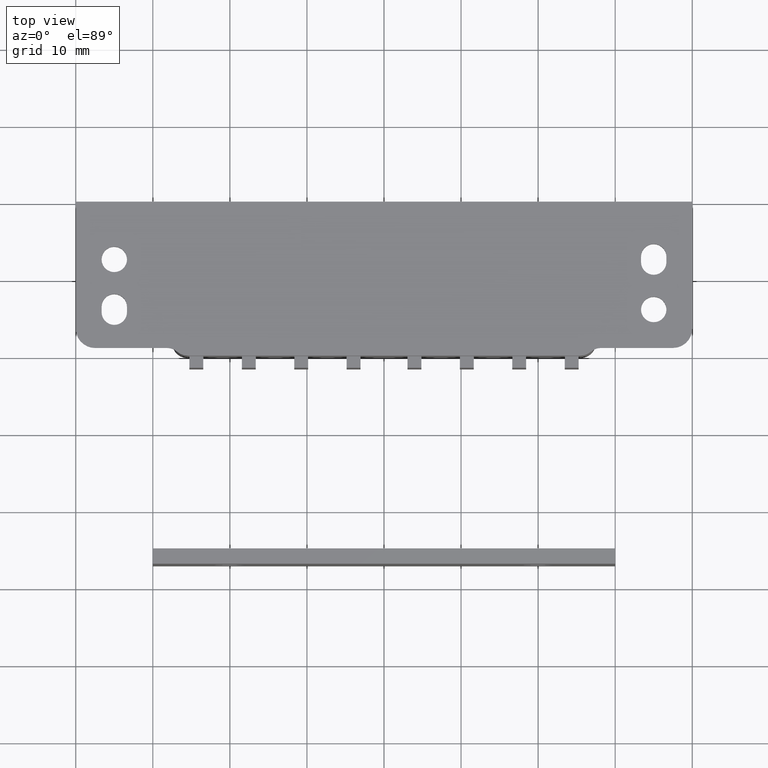
[diagram: clean part render]
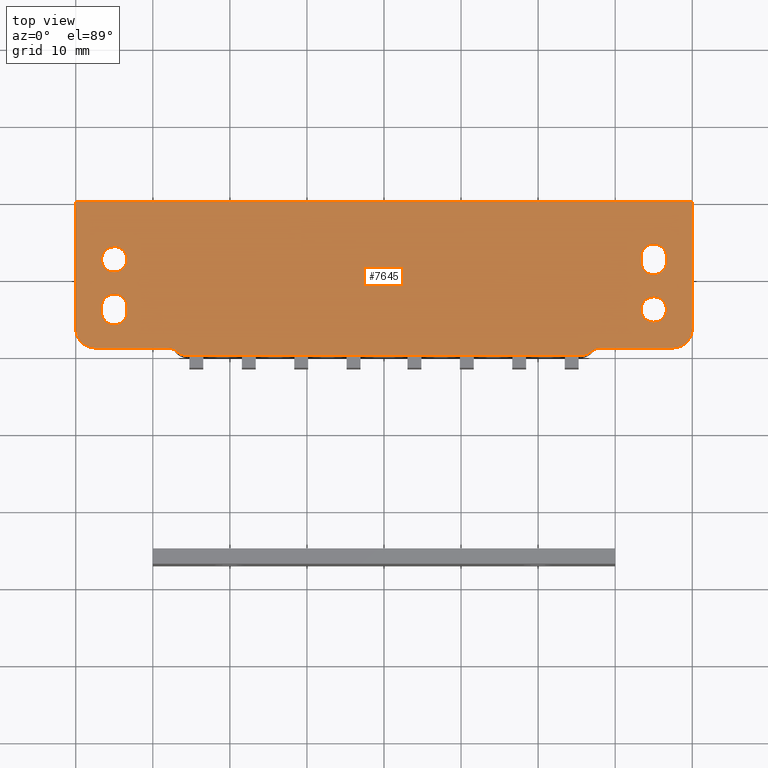
[diagram: same view with one face highlighted and labeled with its STEP entity id]
A machine part, top view. The second image highlights one B-rep face of the part: STEP entity #7645.
In plain terms, the highlighted face is a freeform B-spline surface patch.
Its self-contained STEP definition (entity closure, byte-faithful):
#1995=CARTESIAN_POINT('',(-36.176863099207942,-8.656499951376325,9.999999999830921));
#1996=VERTEX_POINT('',#1995);
#2002=CARTESIAN_POINT('',(-34.999998657114972,-9.149999999921835,9.999999999830921));
#2003=VERTEX_POINT('',#2002);
#2004=CARTESIAN_POINT('',(-36.176863099207942,-8.656499951376325,9.999999999830921));
#2005=CARTESIAN_POINT('',(-36.052559788324402,-8.783150112813512,9.999999999830928));
#2006=CARTESIAN_POINT('',(-35.818316854547803,-8.954711236018451,9.999999999830926));
#2007=CARTESIAN_POINT('',(-35.409442403607073,-9.114354630380699,9.999999999830916));
#2008=CARTESIAN_POINT('',(-35.150142918315858,-9.150046524922862,9.999999999830935));
#2009=CARTESIAN_POINT('',(-34.999998657114972,-9.149999999921835,9.999999999830921));
#2010=B_SPLINE_CURVE_WITH_KNOTS('',3,(#2004,#2005,#2006,#2007,#2008,#2009),.UNSPECIFIED.,.F.,.U.,(4,1,1,4),(0.000000043604833,0.532337739746166,0.859909565033360,1.310340899884334),.UNSPECIFIED.);
#2011=EDGE_CURVE('',#1996,#2003,#2010,.T.);
#2013=CARTESIAN_POINT('',(-33.349999999804950,-7.499999999922379,9.999999999830921));
#2014=VERTEX_POINT('',#2013);
#2015=CARTESIAN_POINT('',(-34.999998657114972,-9.149999999921835,9.999999999830921));
#2016=CARTESIAN_POINT('',(-34.838006827809203,-9.150067975901251,9.999999999830918));
#2017=CARTESIAN_POINT('',(-34.514049093619143,-9.101925546778031,9.999999999830930));
#2018=CARTESIAN_POINT('',(-34.106988056665493,-8.909399673545718,9.999999999830923));
#2019=CARTESIAN_POINT('',(-33.764028063387549,-8.620822454779942,9.999999999830914));
#2020=CARTESIAN_POINT('',(-33.528290545191958,-8.286146174781186,9.999999999830937));
#2021=CARTESIAN_POINT('',(-33.381664756313043,-7.891452604462431,9.999999999830916));
#2022=CARTESIAN_POINT('',(-33.349963664136659,-7.634990368237816,9.999999999830914));
#2023=CARTESIAN_POINT('',(-33.349999999804950,-7.499999999922379,9.999999999830921));
#2024=B_SPLINE_CURVE_WITH_KNOTS('',3,(#2015,#2016,#2017,#2018,#2019,#2020,#2021,#2022,#2023),.UNSPECIFIED.,.F.,.U.,(4,1,1,1,1,1,4),(0.000000143196451,0.485969347096561,0.971972726592703,1.336418079637457,1.822407276901603,2.186905397446274,2.591878221379949),.UNSPECIFIED.);
#2025=EDGE_CURVE('',#2003,#2014,#2024,.T.);
#2027=CARTESIAN_POINT('',(-33.823136900401970,-6.343500048468433,9.999999999830921));
#2028=VERTEX_POINT('',#2027);
#2029=CARTESIAN_POINT('',(-33.349999999804950,-7.499999999922379,9.999999999830921));
#2030=CARTESIAN_POINT('',(-33.349827954581563,-7.299736866380140,9.999999999830941));
#2031=CARTESIAN_POINT('',(-33.428784695021470,-6.872715632039114,9.999999999830896));
#2032=CARTESIAN_POINT('',(-33.663832133787857,-6.505184589184120,9.999999999830939));
#2033=CARTESIAN_POINT('',(-33.823136900401970,-6.343500048468433,9.999999999830921));
#2034=B_SPLINE_CURVE_WITH_KNOTS('',3,(#2029,#2030,#2031,#2032,#2033),.UNSPECIFIED.,.F.,.U.,(4,1,4),(0.000000039019419,0.600731177125174,1.281539180924834),.UNSPECIFIED.);
#2035=EDGE_CURVE('',#2014,#2028,#2034,.T.);
#2074=CARTESIAN_POINT('',(-35.000001342494933,-5.849999999922925,9.999999999830921));
#2075=VERTEX_POINT('',#2074);
#2076=CARTESIAN_POINT('',(-33.823136900401970,-6.343500048468433,9.999999999830921));
#2077=CARTESIAN_POINT('',(-33.947440219661360,-6.216851857524254,9.999999999830923));
#2078=CARTESIAN_POINT('',(-34.181682096385721,-6.045282519078217,9.999999999830916));
#2079=CARTESIAN_POINT('',(-34.590559622598363,-5.885656020689428,9.999999999830941));
#2080=CARTESIAN_POINT('',(-34.849854944656357,-5.849943040640858,9.999999999830887));
#2081=CARTESIAN_POINT('',(-35.000001342494933,-5.849999999922925,9.999999999830921));
#2082=B_SPLINE_CURVE_WITH_KNOTS('',3,(#2076,#2077,#2078,#2079,#2080,#2081),.UNSPECIFIED.,.F.,.U.,(4,1,1,4),(0.000000043606622,0.532337739747048,0.859909565033827,1.310340899884325),.UNSPECIFIED.);
#2083=EDGE_CURVE('',#2028,#2075,#2082,.T.);
#2085=CARTESIAN_POINT('',(-36.649999999804947,-7.499999999922379,9.999999999830921));
#2086=VERTEX_POINT('',#2085);
#2087=CARTESIAN_POINT('',(-35.000001342494933,-5.849999999922925,9.999999999830921));
#2088=CARTESIAN_POINT('',(-35.189001619373322,-5.849887014252571,9.999999999830919));
#2089=CARTESIAN_POINT('',(-35.539885336373288,-5.910959272142915,9.999999999830934));
#2090=CARTESIAN_POINT('',(-35.997236780366933,-6.155387380679422,9.999999999830905));
#2091=CARTESIAN_POINT('',(-36.334932769121792,-6.493140080011412,9.999999999830937));
#2092=CARTESIAN_POINT('',(-36.584554551662741,-6.946637854973534,9.999999999830907));
#2093=CARTESIAN_POINT('',(-36.650171139699061,-7.297495140412822,9.999999999830928));
#2094=CARTESIAN_POINT('',(-36.649999999804947,-7.499999999922379,9.999999999830921));
#2095=B_SPLINE_CURVE_WITH_KNOTS('',3,(#2087,#2088,#2089,#2090,#2091,#2092,#2093,#2094),.UNSPECIFIED.,.F.,.U.,(4,1,1,1,1,4),(0.000000143204139,0.566969918943154,1.052954149314996,1.538922043939130,1.984407963666598,2.591878221379881),.UNSPECIFIED.);
#2096=EDGE_CURVE('',#2075,#2086,#2095,.T.);
#2098=CARTESIAN_POINT('',(-36.649999999804947,-7.499999999922379,9.999999999830921));
#2099=CARTESIAN_POINT('',(-36.650100720806464,-7.673556368000356,9.999999999830941));
#2100=CARTESIAN_POINT('',(-36.605336405290487,-7.953814640821596,9.999999999830914));
#2101=CARTESIAN_POINT('',(-36.433228133789790,-8.346990110478679,9.999999999830925));
#2102=CARTESIAN_POINT('',(-36.279817561326020,-8.551793639319003,9.999999999830925));
#2103=CARTESIAN_POINT('',(-36.176863099207942,-8.656499951376325,9.999999999830921));
#2104=B_SPLINE_CURVE_WITH_KNOTS('',3,(#2098,#2099,#2100,#2101,#2102,#2103),.UNSPECIFIED.,.F.,.U.,(4,1,1,4),(0.000000039019231,0.520636278948182,0.841008550479452,1.281539180924842),.UNSPECIFIED.);
#2105=EDGE_CURVE('',#2086,#1996,#2104,.T.);
#2189=CARTESIAN_POINT('',(33.823136900777577,-15.156499951531620,9.999999999830921));
#2190=VERTEX_POINT('',#2189);
#2196=CARTESIAN_POINT('',(35.000001342870540,-15.650000000077130,9.999999999830921));
#2197=VERTEX_POINT('',#2196);
#2198=CARTESIAN_POINT('',(33.823136900777577,-15.156499951531620,9.999999999830921));
#2199=CARTESIAN_POINT('',(33.947452694158919,-15.283123410151850,9.999999999830916));
#2200=CARTESIAN_POINT('',(34.203972428255732,-15.471107887782070,9.999999999830937));
#2201=CARTESIAN_POINT('',(34.617836507409343,-15.620917070479640,9.999999999830916));
#2202=CARTESIAN_POINT('',(34.877159469762930,-15.650018629716129,9.999999999830937));
#2203=CARTESIAN_POINT('',(35.000001342870540,-15.650000000077130,9.999999999830921));
#2204=B_SPLINE_CURVE_WITH_KNOTS('',3,(#2198,#2199,#2200,#2201,#2202,#2203),.UNSPECIFIED.,.F.,.U.,(4,1,1,4),(0.000000043604201,0.532337739745839,0.941805147262427,1.310340899884335),.UNSPECIFIED.);
#2205=EDGE_CURVE('',#2190,#2197,#2204,.T.);
#2207=CARTESIAN_POINT('',(36.650000000180562,-14.000000000077680,9.999999999830921));
#2208=VERTEX_POINT('',#2207);
#2209=CARTESIAN_POINT('',(35.000001342870540,-15.650000000077130,9.999999999830921));
#2210=CARTESIAN_POINT('',(35.229542078874182,-15.650315151761690,9.999999999830928));
#2211=CARTESIAN_POINT('',(35.620751157747428,-15.566930251436871,9.999999999830916));
#2212=CARTESIAN_POINT('',(36.081905125526433,-15.274888611152511,9.999999999830937));
#2213=CARTESIAN_POINT('',(36.406791283746657,-14.907501070447720,9.999999999830923));
#2214=CARTESIAN_POINT('',(36.606027916788619,-14.472475590641579,9.999999999830909));
#2215=CARTESIAN_POINT('',(36.650034989054397,-14.148488041750671,9.999999999830955));
#2216=CARTESIAN_POINT('',(36.650000000180562,-14.000000000077680,9.999999999830921));
#2217=B_SPLINE_CURVE_WITH_KNOTS('',3,(#2209,#2210,#2211,#2212,#2213,#2214,#2215,#2216),.UNSPECIFIED.,.F.,.U.,(4,1,1,1,1,4),(0.000000143196917,0.688469496129351,1.174474331487579,1.619905225718754,2.146400118895676,2.591878221379945),.UNSPECIFIED.);
#2218=EDGE_CURVE('',#2197,#2208,#2217,.T.);
#2220=CARTESIAN_POINT('',(36.176863099583528,-12.843500048623740,9.999999999830921));
#2221=VERTEX_POINT('',#2220);
#2222=CARTESIAN_POINT('',(36.650000000180562,-14.000000000077680,9.999999999830921));
#2223=CARTESIAN_POINT('',(36.650270085881267,-13.773026707577690,9.999999999830912));
#2224=CARTESIAN_POINT('',(36.560371373034769,-13.346121466745560,9.999999999830907));
#2225=CARTESIAN_POINT('',(36.317345799966560,-12.986219219087840,9.999999999830953));
#2226=CARTESIAN_POINT('',(36.176863099583528,-12.843500048623740,9.999999999830921));
#2227=B_SPLINE_CURVE_WITH_KNOTS('',3,(#2222,#2223,#2224,#2225,#2226),.UNSPECIFIED.,.F.,.U.,(4,1,4),(0.000000039020251,0.680808042821854,1.281539180924835),.UNSPECIFIED.);
#2228=EDGE_CURVE('',#2208,#2221,#2227,.T.);
#2268=CARTESIAN_POINT('',(34.999998657490572,-12.350000000078230,9.999999999830921));
#2269=VERTEX_POINT('',#2268);
#2270=CARTESIAN_POINT('',(36.176863099583528,-12.843500048623740,9.999999999830921));
#2271=CARTESIAN_POINT('',(36.033475826134598,-12.697317342665309,9.999999999830926));
#2272=CARTESIAN_POINT('',(35.668535083438393,-12.443812530069909,9.999999999830914));
#2273=CARTESIAN_POINT('',(35.232087874301122,-12.349669093010650,9.999999999830925));
#2274=CARTESIAN_POINT('',(34.999998657490572,-12.350000000078230,9.999999999830921));
#2275=B_SPLINE_CURVE_WITH_KNOTS('',3,(#2270,#2271,#2272,#2273,#2274),.UNSPECIFIED.,.F.,.U.,(4,1,4),(0.000000043606150,0.614232641435955,1.310340899884326),.UNSPECIFIED.);
#2276=EDGE_CURVE('',#2221,#2269,#2275,.T.);
#2278=CARTESIAN_POINT('',(33.350000000180557,-14.000000000077680,9.999999999830921));
#2279=VERTEX_POINT('',#2278);
#2280=CARTESIAN_POINT('',(34.999998657490572,-12.350000000078230,9.999999999830921));
#2281=CARTESIAN_POINT('',(34.797481235835789,-12.349821942156170,9.999999999830932));
#2282=CARTESIAN_POINT('',(34.473654857573457,-12.410437811254569,9.999999999830925));
#2283=CARTESIAN_POINT('',(34.039631648482342,-12.635604604536450,9.999999999830925));
#2284=CARTESIAN_POINT('',(33.716068482199582,-12.928835353178901,9.999999999830914));
#2285=CARTESIAN_POINT('',(33.430215915028619,-13.392760076525860,9.999999999830930));
#2286=CARTESIAN_POINT('',(33.349685734689437,-13.770455663054079,9.999999999830921));
#2287=CARTESIAN_POINT('',(33.350000000180557,-14.000000000077680,9.999999999830921));
#2288=B_SPLINE_CURVE_WITH_KNOTS('',3,(#2280,#2281,#2282,#2283,#2284,#2285,#2286,#2287),.UNSPECIFIED.,.F.,.U.,(4,1,1,1,1,4),(0.000000143197499,0.607471092770546,0.971972726593701,1.457908386618921,1.903409440746324,2.591878221379911),.UNSPECIFIED.);
#2289=EDGE_CURVE('',#2269,#2279,#2288,.T.);
#2291=CARTESIAN_POINT('',(33.350000000180557,-14.000000000077680,9.999999999830921));
#2292=CARTESIAN_POINT('',(33.349827992734518,-14.200262544430760,9.999999999830909));
#2293=CARTESIAN_POINT('',(33.428784698248499,-14.627285093015169,9.999999999830958));
#2294=CARTESIAN_POINT('',(33.663832125964667,-14.994815106490471,9.999999999830898));
#2295=CARTESIAN_POINT('',(33.823136900777577,-15.156499951531620,9.999999999830921));
#2296=B_SPLINE_CURVE_WITH_KNOTS('',3,(#2291,#2292,#2293,#2294,#2295),.UNSPECIFIED.,.F.,.U.,(4,1,4),(0.000000039020049,0.600731177125451,1.281539180924828),.UNSPECIFIED.);
#2297=EDGE_CURVE('',#2279,#2190,#2296,.T.);
#5148=CARTESIAN_POINT('',(25.500000000000000,-20.0,9.999999999830949));
#5149=VERTEX_POINT('',#5148);
#5155=CARTESIAN_POINT('',(-25.500000000000000,-20.0,9.999999999830949));
#5156=VERTEX_POINT('',#5155);
#5157=CARTESIAN_POINT('',(25.500000000000000,-20.0,9.999999999830949));
#5158=CARTESIAN_POINT('',(-25.500000000000000,-20.0,9.999999999830949));
#5159=QUASI_UNIFORM_CURVE('',1,(#5157,#5158),.UNSPECIFIED.,.F.,.U.);
#5160=EDGE_CURVE('',#5149,#5156,#5159,.T.);
#5394=CARTESIAN_POINT('',(-26.822875655532151,-19.500000000000000,9.999999999830949));
#5395=VERTEX_POINT('',#5394);
#5425=CARTESIAN_POINT('',(-28.145751311064451,-19.0,9.999999999830949));
#5426=VERTEX_POINT('',#5425);
#5427=CARTESIAN_POINT('',(-28.145751311064451,-19.0,9.999999999830949));
#5428=CARTESIAN_POINT('',(-27.919874243531400,-18.999842786054700,9.999999999831017));
#5429=CARTESIAN_POINT('',(-27.438172998481619,-19.082553604432618,9.999999999831067));
#5430=CARTESIAN_POINT('',(-27.014698789111659,-19.330455386900638,9.999999999831029));
#5431=CARTESIAN_POINT('',(-26.822875655532151,-19.500000000000000,9.999999999830949));
#5432=B_SPLINE_CURVE_WITH_KNOTS('',3,(#5427,#5428,#5429,#5430,#5431),.UNSPECIFIED.,.F.,.U.,(4,1,4),(0.000000033092289,0.677587241122112,1.445499211826819),.UNSPECIFIED.);
#5433=EDGE_CURVE('',#5426,#5395,#5432,.T.);
#5659=CARTESIAN_POINT('',(26.822875655532449,-19.500000000000000,9.999999999830949));
#5660=VERTEX_POINT('',#5659);
#5661=CARTESIAN_POINT('',(28.145751311064750,-19.0,9.999999999830949));
#5662=VERTEX_POINT('',#5661);
#5663=CARTESIAN_POINT('',(26.822875655532449,-19.500000000000000,9.999999999830949));
#5664=CARTESIAN_POINT('',(26.969630901307770,-19.370453206022479,9.999999999830942));
#5665=CARTESIAN_POINT('',(27.263294357220278,-19.179940112322608,9.999999999830971));
#5666=CARTESIAN_POINT('',(27.724160135493008,-19.029170376796490,9.999999999830918));
#5667=CARTESIAN_POINT('',(28.010237703033891,-18.999985242852429,9.999999999830980));
#5668=CARTESIAN_POINT('',(28.145751311064750,-19.0,9.999999999830949));
#5669=B_SPLINE_CURVE_WITH_KNOTS('',3,(#5663,#5664,#5665,#5666,#5667,#5668),.UNSPECIFIED.,.F.,.U.,(4,1,1,4),(0.000000033092682,0.587244772072004,1.038950390007294,1.445499211826872),.UNSPECIFIED.);
#5670=EDGE_CURVE('',#5660,#5662,#5669,.T.);
#5948=CARTESIAN_POINT('',(-33.349999999820263,-14.349999999925920,9.999999999830949));
#5949=VERTEX_POINT('',#5948);
#5950=CARTESIAN_POINT('',(-33.349999999818714,-13.649999999925940,9.999999999830921));
#5951=VERTEX_POINT('',#5950);
#5952=CARTESIAN_POINT('',(-33.349999999820263,-14.349999999925920,9.999999999830949));
#5953=CARTESIAN_POINT('',(-33.349999999818714,-13.649999999925940,9.999999999830921));
#5954=QUASI_UNIFORM_CURVE('',1,(#5952,#5953),.UNSPECIFIED.,.F.,.U.);
#5955=EDGE_CURVE('',#5949,#5951,#5954,.T.);
#5989=CARTESIAN_POINT('',(-36.649999999820253,-14.349999999918600,9.999999999830921));
#5990=VERTEX_POINT('',#5989);
#5991=CARTESIAN_POINT('',(-34.999998657133517,-15.999999999921760,9.999999999830921));
#5992=VERTEX_POINT('',#5991);
#5993=CARTESIAN_POINT('',(-36.649999999820253,-14.349999999918600,9.999999999830921));
#5994=CARTESIAN_POINT('',(-36.650028250921402,-14.484989427412421,9.999999999830925));
#5995=CARTESIAN_POINT('',(-36.615034993624597,-14.768463355077230,9.999999999830921));
#5996=CARTESIAN_POINT('',(-36.448177324925510,-15.185887729060340,9.999999999830886));
#5997=CARTESIAN_POINT('',(-36.179489864329163,-15.530116338169311,9.999999999830997));
#5998=CARTESIAN_POINT('',(-35.898432266334702,-15.743888377256910,9.999999999830790));
#5999=CARTESIAN_POINT('',(-35.526289207819282,-15.937062656461061,9.999999999830958));
#6000=CARTESIAN_POINT('',(-35.229547928839388,-16.000299006734540,9.999999999831053));
#6001=CARTESIAN_POINT('',(-34.999998657133517,-15.999999999921760,9.999999999830921));
#6002=B_SPLINE_CURVE_WITH_KNOTS('',3,(#5993,#5994,#5995,#5996,#5997,#5998,#5999,#6000,#6001),.UNSPECIFIED.,.F.,.U.,(4,1,1,1,1,1,4),(0.000000141363688,0.404977360991245,0.850462318756359,1.336418857481805,1.700913000900530,1.903410552762503,2.591879734942486),.UNSPECIFIED.);
#6003=EDGE_CURVE('',#5990,#5992,#6002,.T.);
#6005=CARTESIAN_POINT('',(-34.999998657133517,-15.999999999921760,9.999999999830921));
#6006=CARTESIAN_POINT('',(-34.797490294161200,-16.000178847883650,9.999999999830935));
#6007=CARTESIAN_POINT('',(-34.446640575634191,-15.934549382105910,9.999999999830916));
#6008=CARTESIAN_POINT('',(-33.993135819078269,-15.684935640096100,9.999999999830935));
#6009=CARTESIAN_POINT('',(-33.665057187771737,-15.356871259969830,9.999999999830944));
#6010=CARTESIAN_POINT('',(-33.415448892837901,-14.903358789023210,9.999999999830934));
#6011=CARTESIAN_POINT('',(-33.349827949544697,-14.552505944276289,9.999999999830969));
#6012=CARTESIAN_POINT('',(-33.349999999820263,-14.349999999925920,9.999999999830949));
#6013=B_SPLINE_CURVE_WITH_KNOTS('',3,(#6005,#6006,#6007,#6008,#6009,#6010,#6011,#6012),.UNSPECIFIED.,.F.,.U.,(4,1,1,1,1,4),(0.000000143204163,0.607471092775437,1.052954149315453,1.538922043939711,1.984407963666999,2.591878221379680),.UNSPECIFIED.);
#6014=EDGE_CURVE('',#5992,#5949,#6013,.T.);
#6032=CARTESIAN_POINT('',(-36.649999999818696,-13.649999999918659,9.999999999830921));
#6033=VERTEX_POINT('',#6032);
#6034=CARTESIAN_POINT('',(-36.649999999818696,-13.649999999918659,9.999999999830921));
#6035=CARTESIAN_POINT('',(-36.649999999820253,-14.349999999918600,9.999999999830921));
#6036=QUASI_UNIFORM_CURVE('',1,(#6034,#6035),.UNSPECIFIED.,.F.,.U.);
#6037=EDGE_CURVE('',#6033,#5990,#6036,.T.);
#6067=CARTESIAN_POINT('',(-34.999999999816893,-11.999999999922300,9.999999999830921));
#6068=VERTEX_POINT('',#6067);
#6069=CARTESIAN_POINT('',(-33.349999999818714,-13.649999999925940,9.999999999830921));
#6070=CARTESIAN_POINT('',(-33.349823979707331,-13.447482721639860,9.999999999830921));
#6071=CARTESIAN_POINT('',(-33.410431626205359,-13.123655101048231,9.999999999830951));
#6072=CARTESIAN_POINT('',(-33.635613380475171,-12.689631927850440,9.999999999830889));
#6073=CARTESIAN_POINT('',(-33.892178145759537,-12.406523919695500,9.999999999830960));
#6074=CARTESIAN_POINT('',(-34.193879976782704,-12.199620087041660,9.999999999830886));
#6075=CARTESIAN_POINT('',(-34.541088672062301,-12.045666611431709,9.999999999830985));
#6076=CARTESIAN_POINT('',(-34.824501801872898,-11.999904844235781,9.999999999830857));
#6077=CARTESIAN_POINT('',(-34.999999999816893,-11.999999999922300,9.999999999830921));
#6078=B_SPLINE_CURVE_WITH_KNOTS('',3,(#6069,#6070,#6071,#6072,#6073,#6074,#6075,#6076,#6077),.UNSPECIFIED.,.F.,.U.,(4,1,1,1,1,1,4),(0.000000142276358,0.607471269429188,0.971973009488729,1.457908813164520,1.741417795148994,2.065410730747077,2.591878978162352),.UNSPECIFIED.);
#6079=EDGE_CURVE('',#5951,#6068,#6078,.T.);
#6081=CARTESIAN_POINT('',(-34.999999999816893,-11.999999999922300,9.999999999830921));
#6082=CARTESIAN_POINT('',(-35.161992452424833,-11.999925625427700,9.999999999830930));
#6083=CARTESIAN_POINT('',(-35.445435128033971,-12.042093896346101,9.999999999830907));
#6084=CARTESIAN_POINT('',(-35.782467595200423,-12.186588218170250,9.999999999830941));
#6085=CARTESIAN_POINT('',(-36.052579107577621,-12.367067799990121,9.999999999830919));
#6086=CARTESIAN_POINT('',(-36.285885386608420,-12.594690763671551,9.999999999830910));
#6087=CARTESIAN_POINT('',(-36.478440732346961,-12.890692634830961,9.999999999830964));
#6088=CARTESIAN_POINT('',(-36.615130106239093,-13.245050762766640,9.999999999830827));
#6089=CARTESIAN_POINT('',(-36.650053965100319,-13.501504116718570,9.999999999831051));
#6090=CARTESIAN_POINT('',(-36.649999999818696,-13.649999999918659,9.999999999830921));
#6091=B_SPLINE_CURVE_WITH_KNOTS('',3,(#6081,#6082,#6083,#6084,#6085,#6086,#6087,#6088,#6089,#6090),.UNSPECIFIED.,.F.,.U.,(4,1,1,1,1,1,1,4),(0.000000142279290,0.485969488169024,0.850462070785217,1.093461441604808,1.457908813164779,1.822407809335035,2.146400744933881,2.591878978160312),.UNSPECIFIED.);
#6092=EDGE_CURVE('',#6068,#6033,#6091,.T.);
#6106=CARTESIAN_POINT('',(33.350000000195749,-7.150000000073930,9.999999999830949));
#6107=VERTEX_POINT('',#6106);
#6108=CARTESIAN_POINT('',(33.350000000194150,-7.850000000073890,9.999999999830921));
#6109=VERTEX_POINT('',#6108);
#6110=CARTESIAN_POINT('',(33.350000000195749,-7.150000000073930,9.999999999830949));
#6111=CARTESIAN_POINT('',(33.350000000194150,-7.850000000073890,9.999999999830921));
#6112=QUASI_UNIFORM_CURVE('',1,(#6110,#6111),.UNSPECIFIED.,.F.,.U.);
#6113=EDGE_CURVE('',#6107,#6109,#6112,.T.);
#6147=CARTESIAN_POINT('',(36.650000000195753,-7.150000000081239,9.999999999830921));
#6148=VERTEX_POINT('',#6147);
#6149=CARTESIAN_POINT('',(35.000000000197517,-5.500000000077600,9.999999999830921));
#6150=VERTEX_POINT('',#6149);
#6151=CARTESIAN_POINT('',(36.650000000195753,-7.150000000081239,9.999999999830921));
#6152=CARTESIAN_POINT('',(36.650279780172163,-6.920460595195561,9.999999999830926));
#6153=CARTESIAN_POINT('',(36.575575875559267,-6.569737966243877,9.999999999830902));
#6154=CARTESIAN_POINT('',(36.349768336651479,-6.182554945853217,9.999999999830932));
#6155=CARTESIAN_POINT('',(36.098513285408863,-5.898311006377206,9.999999999830894));
#6156=CARTESIAN_POINT('',(35.797303369227940,-5.686163938015399,9.999999999830951));
#6157=CARTESIAN_POINT('',(35.404946298613751,-5.534872675638113,9.999999999830887));
#6158=CARTESIAN_POINT('',(35.148493395096366,-5.499950571811533,9.999999999830935));
#6159=CARTESIAN_POINT('',(35.000000000197517,-5.500000000077600,9.999999999830921));
#6160=B_SPLINE_CURVE_WITH_KNOTS('',3,(#6151,#6152,#6153,#6154,#6155,#6156,#6157,#6158,#6159),.UNSPECIFIED.,.F.,.U.,(4,1,1,1,1,1,4),(0.000000142281871,0.688469696413773,1.052954455396957,1.336418468561289,1.822407809336705,2.146400744935654,2.591878978162362),.UNSPECIFIED.);
#6161=EDGE_CURVE('',#6148,#6150,#6160,.T.);
#6163=CARTESIAN_POINT('',(35.000000000197517,-5.500000000077600,9.999999999830921));
#6164=CARTESIAN_POINT('',(34.770455436379962,-5.499706705028362,9.999999999830942));
#6165=CARTESIAN_POINT('',(34.446725006594967,-5.568691171352916,9.999999999830891));
#6166=CARTESIAN_POINT('',(34.055044433022857,-5.784384577293785,9.999999999830941));
#6167=CARTESIAN_POINT('',(33.816029755161424,-5.985475393273947,9.999999999830965));
#6168=CARTESIAN_POINT('',(33.604379765793972,-6.249931433154823,9.999999999830898));
#6169=CARTESIAN_POINT('',(33.410421241533470,-6.623639827817538,9.999999999830987));
#6170=CARTESIAN_POINT('',(33.349818704355492,-6.947486441802309,9.999999999830926));
#6171=CARTESIAN_POINT('',(33.350000000195749,-7.150000000073930,9.999999999830949));
#6172=B_SPLINE_CURVE_WITH_KNOTS('',3,(#6163,#6164,#6165,#6166,#6167,#6168,#6169,#6170,#6171),.UNSPECIFIED.,.F.,.U.,(4,1,1,1,1,1,4),(0.000000142277889,0.688469696410435,0.971973009489058,1.336418468558928,1.619905698937448,1.984408543326756,2.591878978160204),.UNSPECIFIED.);
#6173=EDGE_CURVE('',#6150,#6107,#6172,.T.);
#6191=CARTESIAN_POINT('',(36.650000000194197,-7.850000000081219,9.999999999830921));
#6192=VERTEX_POINT('',#6191);
#6193=CARTESIAN_POINT('',(36.650000000194197,-7.850000000081219,9.999999999830921));
#6194=CARTESIAN_POINT('',(36.650000000195753,-7.150000000081239,9.999999999830921));
#6195=QUASI_UNIFORM_CURVE('',1,(#6193,#6194),.UNSPECIFIED.,.F.,.U.);
#6196=EDGE_CURVE('',#6192,#6148,#6195,.T.);
#6226=CARTESIAN_POINT('',(35.000001342880907,-9.500000000076982,9.999999999830921));
#6227=VERTEX_POINT('',#6226);
#6228=CARTESIAN_POINT('',(33.350000000194150,-7.850000000073890,9.999999999830921));
#6229=CARTESIAN_POINT('',(33.349981368623453,-7.971487834961571,9.999999999830925));
#6230=CARTESIAN_POINT('',(33.378459330915447,-8.227959992989195,9.999999999830921));
#6231=CARTESIAN_POINT('',(33.529535683059031,-8.650607420707591,9.999999999830918));
#6232=CARTESIAN_POINT('',(33.839632818836542,-9.068778057911418,9.999999999830921));
#6233=CARTESIAN_POINT('',(34.352209225152883,-9.411261612988154,9.999999999830926));
#6234=CARTESIAN_POINT('',(34.770486816484649,-9.500279544041778,9.999999999830921));
#6235=CARTESIAN_POINT('',(35.000001342880907,-9.500000000076982,9.999999999830921));
#6236=B_SPLINE_CURVE_WITH_KNOTS('',3,(#6228,#6229,#6230,#6231,#6232,#6233,#6234,#6235),.UNSPECIFIED.,.F.,.U.,(4,1,1,1,1,4),(0.000000141357352,0.364470789720058,0.769471383543764,1.336418857480457,1.903410552762110,2.591879734942471),.UNSPECIFIED.);
#6237=EDGE_CURVE('',#6109,#6227,#6236,.T.);
#6239=CARTESIAN_POINT('',(35.000001342880907,-9.500000000076982,9.999999999830921));
#6240=CARTESIAN_POINT('',(35.202514640447660,-9.500171236346807,9.999999999830907));
#6241=CARTESIAN_POINT('',(35.526359000211912,-9.439583986987007,9.999999999830967));
#6242=CARTESIAN_POINT('',(35.924173491281273,-9.233119781770174,9.999999999830882));
#6243=CARTESIAN_POINT('',(36.235976568530972,-8.970825410490662,9.999999999830941));
#6244=CARTESIAN_POINT('',(36.463839516321627,-8.647303864853024,9.999999999830919));
#6245=CARTESIAN_POINT('',(36.615123870172042,-8.254943507008738,9.999999999830919));
#6246=CARTESIAN_POINT('',(36.650053263738819,-7.998495896725114,9.999999999830937));
#6247=CARTESIAN_POINT('',(36.650000000194197,-7.850000000081219,9.999999999830921));
#6248=B_SPLINE_CURVE_WITH_KNOTS('',3,(#6239,#6240,#6241,#6242,#6243,#6244,#6245,#6246,#6247),.UNSPECIFIED.,.F.,.U.,(4,1,1,1,1,1,4),(0.000000143198491,0.607471092771285,0.971972726594204,1.336418079638489,1.822407276902048,2.146400118895840,2.591878221379697),.UNSPECIFIED.);
#6249=EDGE_CURVE('',#6227,#6192,#6248,.T.);
#6360=CARTESIAN_POINT('',(25.500000000000000,-20.0,9.999999999830949));
#6361=CARTESIAN_POINT('',(25.756000941961041,-20.000244945492540,9.999999999830951));
#6362=CARTESIAN_POINT('',(26.237602144799052,-19.906136358245970,9.999999999830942));
#6363=CARTESIAN_POINT('',(26.653568064710470,-19.649514925544061,9.999999999830967));
#6364=CARTESIAN_POINT('',(26.822875655532449,-19.500000000000000,9.999999999830949));
#6365=B_SPLINE_CURVE_WITH_KNOTS('',3,(#6360,#6361,#6362,#6363,#6364),.UNSPECIFIED.,.F.,.U.,(4,1,4),(0.000000033091931,0.767912003796789,1.445499211827006),.UNSPECIFIED.);
#6366=EDGE_CURVE('',#5149,#5660,#6365,.T.);
#6471=CARTESIAN_POINT('',(-26.822875655532151,-19.500000000000000,9.999999999830949));
#6472=CARTESIAN_POINT('',(-26.631036125594420,-19.669511962374159,9.999999999830951));
#6473=CARTESIAN_POINT('',(-26.207589135470990,-19.917479012883518,9.999999999830962));
#6474=CARTESIAN_POINT('',(-25.725876006844171,-20.000150402465881,9.999999999830951));
#6475=CARTESIAN_POINT('',(-25.500000000000000,-20.0,9.999999999830949));
#6476=B_SPLINE_CURVE_WITH_KNOTS('',3,(#6471,#6472,#6473,#6474,#6475),.UNSPECIFIED.,.F.,.U.,(4,1,4),(0.000000033091254,0.767912003796494,1.445499211826743),.UNSPECIFIED.);
#6477=EDGE_CURVE('',#5395,#5156,#6476,.T.);
#7071=CARTESIAN_POINT('',(-40.0,-5.0,9.999999999830949));
#7072=VERTEX_POINT('',#7071);
#7119=CARTESIAN_POINT('',(-40.0,-16.500000000000000,9.999999999830949));
#7120=VERTEX_POINT('',#7119);
#7133=CARTESIAN_POINT('',(-40.0,-16.500000000000000,9.999999999830949));
#7134=CARTESIAN_POINT('',(-40.0,-5.0,9.999999999830949));
#7135=QUASI_UNIFORM_CURVE('',1,(#7133,#7134),.UNSPECIFIED.,.F.,.U.);
#7136=EDGE_CURVE('',#7120,#7072,#7135,.T.);
#7167=CARTESIAN_POINT('',(-37.500000000000000,-19.0,9.999999999830949));
#7168=VERTEX_POINT('',#7167);
#7182=CARTESIAN_POINT('',(-40.0,-16.500000000000000,9.999999999830949));
#7183=CARTESIAN_POINT('',(-40.000077754875079,-16.724990664261050,9.999999999830946));
#7184=CARTESIAN_POINT('',(-39.947169644042077,-17.113555052668890,9.999999999830944));
#7185=CARTESIAN_POINT('',(-39.747457768903587,-17.631280489155110,9.999999999830907));
#7186=CARTESIAN_POINT('',(-39.483574408492430,-18.047997306725570,9.999999999830941));
#7187=CARTESIAN_POINT('',(-39.143458148694997,-18.405229408275201,9.999999999830905));
#7188=CARTESIAN_POINT('',(-38.740194717647228,-18.689235634026961,9.999999999830934));
#7189=CARTESIAN_POINT('',(-38.195320330314473,-18.930804140290160,9.999999999830919));
#7190=CARTESIAN_POINT('',(-37.765911217327108,-19.000145193432161,9.999999999830964));
#7191=CARTESIAN_POINT('',(-37.500000000000000,-19.0,9.999999999830949));
#7192=B_SPLINE_CURVE_WITH_KNOTS('',3,(#7182,#7183,#7184,#7185,#7186,#7187,#7188,#7189,#7190,#7191),.UNSPECIFIED.,.F.,.U.,(4,1,1,1,1,1,1,4),(0.000000048786102,0.674963356796440,1.165858561915037,1.656751593041308,2.147620588130685,2.638510575359961,3.129400375707675,3.927089360836428),.UNSPECIFIED.);
#7193=EDGE_CURVE('',#7120,#7168,#7192,.T.);
#7215=CARTESIAN_POINT('',(-28.145751311064451,-19.0,9.999999999830949));
#7216=CARTESIAN_POINT('',(-37.500000000000000,-19.0,9.999999999830949));
#7217=QUASI_UNIFORM_CURVE('',1,(#7215,#7216),.UNSPECIFIED.,.F.,.U.);
#7218=EDGE_CURVE('',#5426,#7168,#7217,.T.);
#7239=CARTESIAN_POINT('',(40.0,-16.500000000000000,9.999999999834360));
#7240=VERTEX_POINT('',#7239);
#7254=CARTESIAN_POINT('',(40.0,-5.0,9.999999999834360));
#7255=VERTEX_POINT('',#7254);
#7269=CARTESIAN_POINT('',(40.0,-16.500000000000000,9.999999999834360));
#7270=CARTESIAN_POINT('',(40.0,-5.0,9.999999999834360));
#7271=QUASI_UNIFORM_CURVE('',1,(#7269,#7270),.UNSPECIFIED.,.F.,.U.);
#7272=EDGE_CURVE('',#7240,#7255,#7271,.T.);
#7352=CARTESIAN_POINT('',(37.500000000000000,-19.0,9.999999999830949));
#7353=VERTEX_POINT('',#7352);
#7354=CARTESIAN_POINT('',(37.500000000000000,-19.0,9.999999999830949));
#7355=CARTESIAN_POINT('',(37.724984623803032,-19.000068508000879,9.999999999830745));
#7356=CARTESIAN_POINT('',(38.195390047501171,-18.936088006031760,9.999999999830425));
#7357=CARTESIAN_POINT('',(38.781350869270391,-18.676427984545199,9.999999999830436));
#7358=CARTESIAN_POINT('',(39.299817539360149,-18.271725510285201,9.999999999830935));
#7359=CARTESIAN_POINT('',(39.694189491137053,-17.766504306345571,9.999999999831688));
#7360=CARTESIAN_POINT('',(39.947021771477488,-17.134034330281221,9.999999999832971));
#7361=CARTESIAN_POINT('',(40.000046066626567,-16.704531238378390,9.999999999833822));
#7362=CARTESIAN_POINT('',(40.0,-16.500000000000000,9.999999999834360));
#7363=B_SPLINE_CURVE_WITH_KNOTS('',3,(#7354,#7355,#7356,#7357,#7358,#7359,#7360,#7361,#7362),.UNSPECIFIED.,.F.,.U.,(4,1,1,1,1,1,4),(0.000000048793510,0.674963356803163,1.411306442404279,1.902188172410902,2.638510575362739,3.313485196767465,3.927089360836337),.UNSPECIFIED.);
#7364=EDGE_CURVE('',#7353,#7240,#7363,.T.);
#7435=CARTESIAN_POINT('',(28.145751311064750,-19.0,9.999999999830949));
#7436=CARTESIAN_POINT('',(37.500000000000000,-19.0,9.999999999830949));
#7437=QUASI_UNIFORM_CURVE('',1,(#7435,#7436),.UNSPECIFIED.,.F.,.U.);
#7438=EDGE_CURVE('',#5662,#7353,#7437,.T.);
#7534=CARTESIAN_POINT('',(40.0,0.0,9.999999999834360));
#7535=VERTEX_POINT('',#7534);
#7541=CARTESIAN_POINT('',(40.0,-5.0,9.999999999834360));
#7542=CARTESIAN_POINT('',(40.0,0.0,9.999999999834360));
#7543=QUASI_UNIFORM_CURVE('',1,(#7541,#7542),.UNSPECIFIED.,.F.,.U.);
#7544=EDGE_CURVE('',#7255,#7535,#7543,.T.);
#7555=CARTESIAN_POINT('',(-40.0,0.0,9.999999999830949));
#7556=VERTEX_POINT('',#7555);
#7557=CARTESIAN_POINT('',(-40.0,-5.0,9.999999999830949));
#7558=CARTESIAN_POINT('',(-40.0,0.0,9.999999999830949));
#7559=QUASI_UNIFORM_CURVE('',1,(#7557,#7558),.UNSPECIFIED.,.F.,.U.);
#7560=EDGE_CURVE('',#7072,#7556,#7559,.T.);
#7588=CARTESIAN_POINT('',(43.995999844944478,-20.998999961236120,9.999999999830949));
#7589=CARTESIAN_POINT('',(-43.996001990711690,-20.998999961236120,9.999999999830949));
#7590=CARTESIAN_POINT('',(43.995999844944478,0.999000497677922,9.999999999830949));
#7591=CARTESIAN_POINT('',(-43.996001990711690,0.999000497677922,9.999999999830949));
#7592=B_SPLINE_SURFACE_WITH_KNOTS('',1,1,((#7588,#7590),(#7589,#7591)),.UNSPECIFIED.,.F.,.F.,.U.,(2,2),(2,2),(0.0,87.992001835656168),(0.0,21.998000458914039),.UNSPECIFIED.);
#7593=ORIENTED_EDGE('',*,*,#6366,.T.);
#7594=ORIENTED_EDGE('',*,*,#5670,.T.);
#7595=ORIENTED_EDGE('',*,*,#7438,.T.);
#7596=ORIENTED_EDGE('',*,*,#7364,.T.);
#7597=ORIENTED_EDGE('',*,*,#7272,.T.);
#7598=ORIENTED_EDGE('',*,*,#7544,.T.);
#7599=CARTESIAN_POINT('',(40.0,0.0,9.999999999834360));
#7600=CARTESIAN_POINT('',(-40.0,0.0,9.999999999830949));
#7601=QUASI_UNIFORM_CURVE('',1,(#7599,#7600),.UNSPECIFIED.,.F.,.U.);
#7602=EDGE_CURVE('',#7535,#7556,#7601,.T.);
#7603=ORIENTED_EDGE('',*,*,#7602,.T.);
#7604=ORIENTED_EDGE('',*,*,#7560,.F.);
#7605=ORIENTED_EDGE('',*,*,#7136,.F.);
#7606=ORIENTED_EDGE('',*,*,#7193,.T.);
#7607=ORIENTED_EDGE('',*,*,#7218,.F.);
#7608=ORIENTED_EDGE('',*,*,#5433,.T.);
#7609=ORIENTED_EDGE('',*,*,#6477,.T.);
#7610=ORIENTED_EDGE('',*,*,#5160,.F.);
#7611=EDGE_LOOP('',(#7593,#7594,#7595,#7596,#7597,#7598,#7603,#7604,#7605,#7606,#7607,#7608,#7609,#7610));
#7612=FACE_OUTER_BOUND('',#7611,.T.);
#7613=ORIENTED_EDGE('',*,*,#5955,.F.);
#7614=ORIENTED_EDGE('',*,*,#6014,.F.);
#7615=ORIENTED_EDGE('',*,*,#6003,.F.);
#7616=ORIENTED_EDGE('',*,*,#6037,.F.);
#7617=ORIENTED_EDGE('',*,*,#6092,.F.);
#7618=ORIENTED_EDGE('',*,*,#6079,.F.);
#7619=EDGE_LOOP('',(#7613,#7614,#7615,#7616,#7617,#7618));
#7620=FACE_BOUND('',#7619,.T.);
#7621=ORIENTED_EDGE('',*,*,#6113,.F.);
#7622=ORIENTED_EDGE('',*,*,#6173,.F.);
#7623=ORIENTED_EDGE('',*,*,#6161,.F.);
#7624=ORIENTED_EDGE('',*,*,#6196,.F.);
#7625=ORIENTED_EDGE('',*,*,#6249,.F.);
#7626=ORIENTED_EDGE('',*,*,#6237,.F.);
#7627=EDGE_LOOP('',(#7621,#7622,#7623,#7624,#7625,#7626));
#7628=FACE_BOUND('',#7627,.T.);
#7629=ORIENTED_EDGE('',*,*,#2218,.F.);
#7630=ORIENTED_EDGE('',*,*,#2205,.F.);
#7631=ORIENTED_EDGE('',*,*,#2297,.F.);
#7632=ORIENTED_EDGE('',*,*,#2289,.F.);
#7633=ORIENTED_EDGE('',*,*,#2276,.F.);
#7634=ORIENTED_EDGE('',*,*,#2228,.F.);
#7635=EDGE_LOOP('',(#7629,#7630,#7631,#7632,#7633,#7634));
#7636=FACE_BOUND('',#7635,.T.);
#7637=ORIENTED_EDGE('',*,*,#2025,.F.);
#7638=ORIENTED_EDGE('',*,*,#2011,.F.);
#7639=ORIENTED_EDGE('',*,*,#2105,.F.);
#7640=ORIENTED_EDGE('',*,*,#2096,.F.);
#7641=ORIENTED_EDGE('',*,*,#2083,.F.);
#7642=ORIENTED_EDGE('',*,*,#2035,.F.);
#7643=EDGE_LOOP('',(#7637,#7638,#7639,#7640,#7641,#7642));
#7644=FACE_BOUND('',#7643,.T.);
#7645=ADVANCED_FACE('',(#7612,#7620,#7628,#7636,#7644),#7592,.F.);